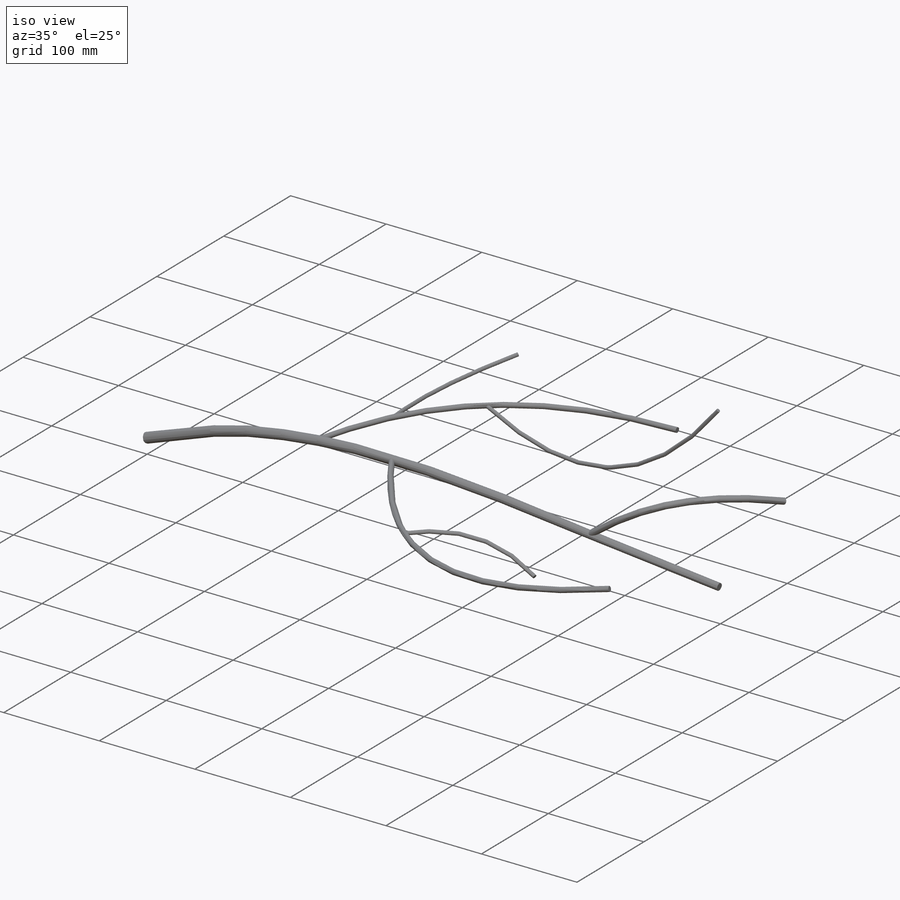
[diagram: iso view]
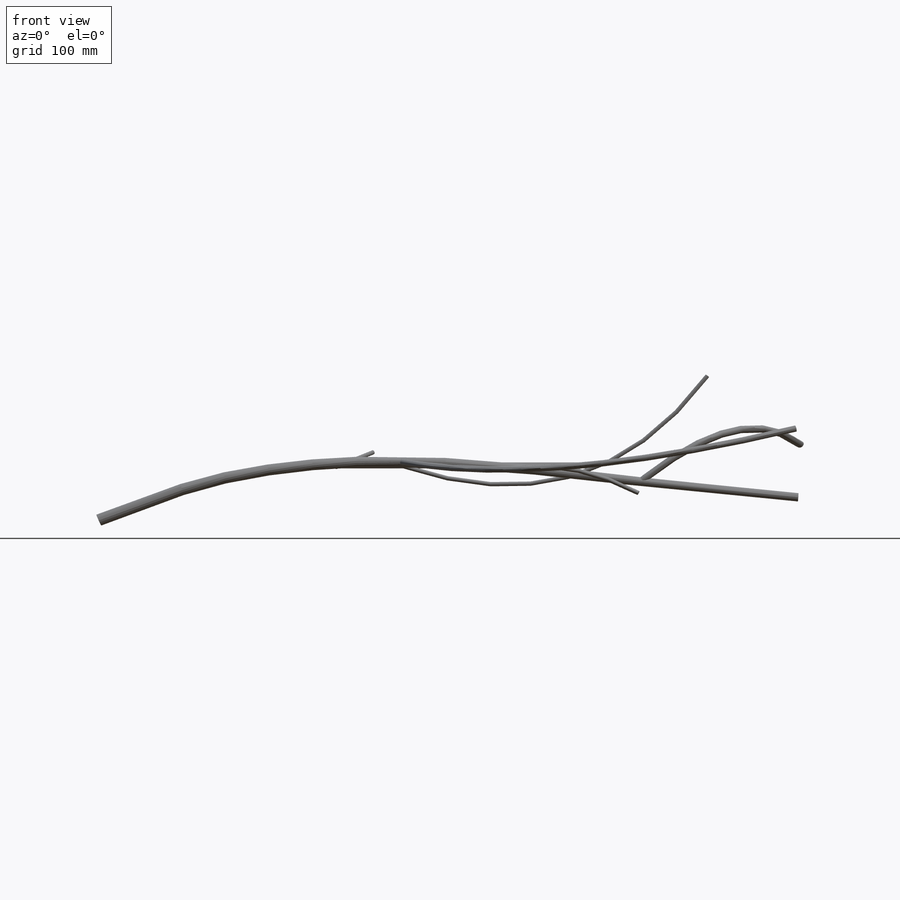
[diagram: front view]
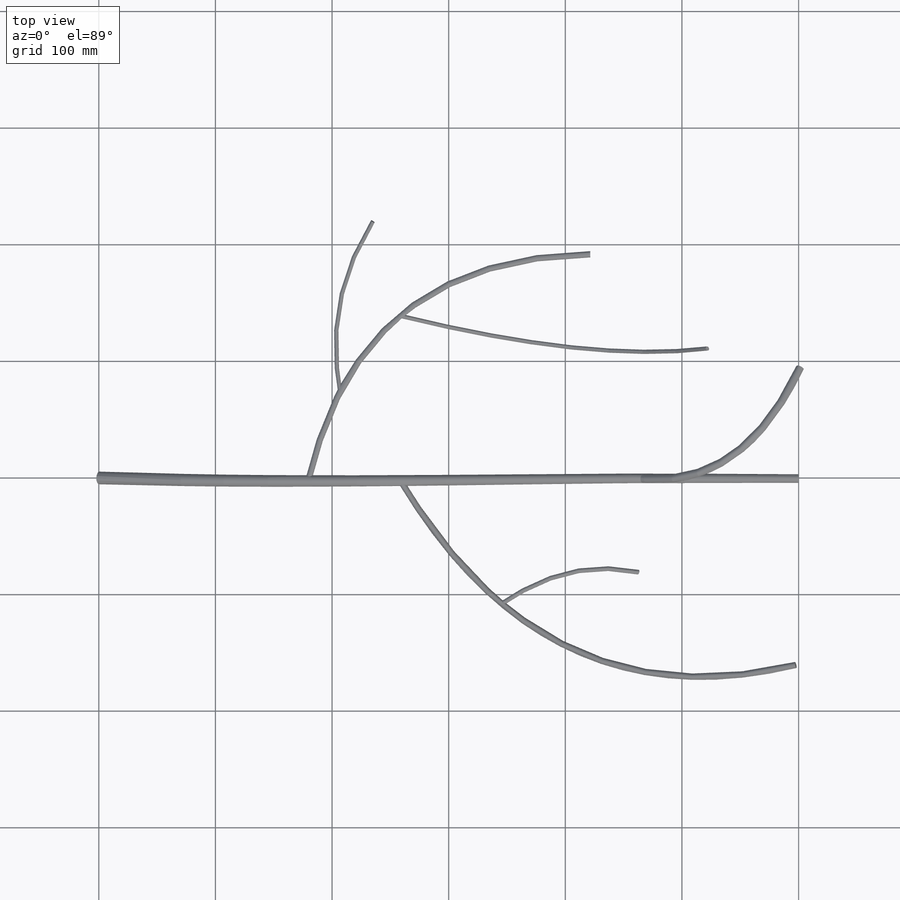
[diagram: top view]
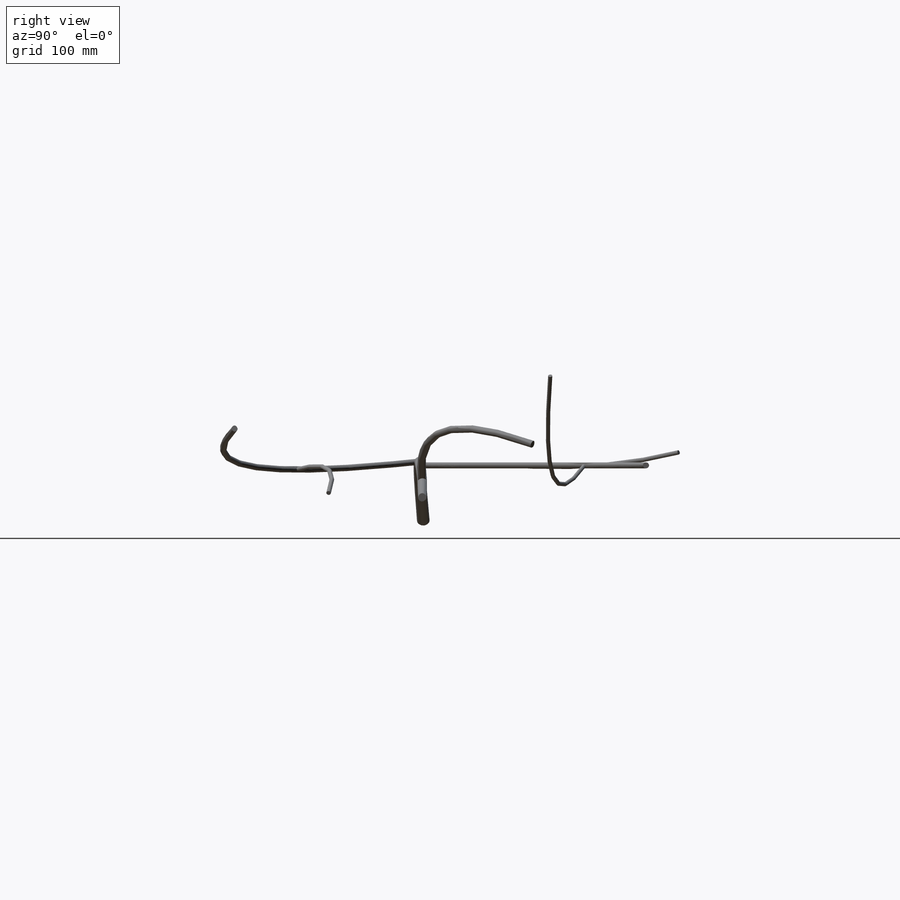
[diagram: right view]
SOLIDWORKS PART (.sldprt)
format: sldprt  version: not decoded by parser v0  size: 337,408 bytes
history: native  units: mm
features: sketch x15, plane x8, sweep x6, material x1 (+13 scaffold rows collapsed)
feature tree (43):
  scaffold x13  (default folders/planes/origin — collapsed)
  material  "Mahogany"
  sketch  "3DSketch1"  dims[D1=~135.465044mm D2=600.0mm]
  plane  "Plane2"
  sketch  "Sketch4"  dims[D1=10.0mm]
  plane  "Plane3"
  sketch  "Sketch5"  dims[D1=7.0mm]
  plane  "Plane4"
  sketch  "Sketch6"  dims[D1=5.0mm]
  sweep  "Sweep1"
  sketch  "3DSketch1<3>"
  plane  "Plane5"
  sketch  "Sketch7"  dims[D1=6.0mm]
  sweep  "Sweep2"
  sketch  "3DSketch1<4>"
  plane  "Plane7"
  sketch  "Sketch9"  dims[D1=3.5mm]
  plane  "Plane6"
  sketch  "Sketch8"  dims[D1=5.0mm]
  sweep  "Sweep3"
  sketch  "3DSketch1<5>"
  sweep  "Sweep4"
  sketch  "3DSketch1<6>"
  plane  "Plane8"
  sketch  "Sketch10"  dims[D1=3.5mm]
  sweep  "Sweep5"
  sketch  "3DSketch1<7>"
  plane  "Plane9"
  sketch  "Sketch11"  dims[D1=3.5mm]
  sweep  "Sweep6"
  sketch  "3DSketch1<9>"
decode coverage: 9 of 21 modeling features carry decoded parameters
note: ~ marks probable driven/reference dimensions
summary: profile_refs inferred from adjacent sketches, not decoded
note: suppression state not decoded; provenance and decode notes live in map.json
